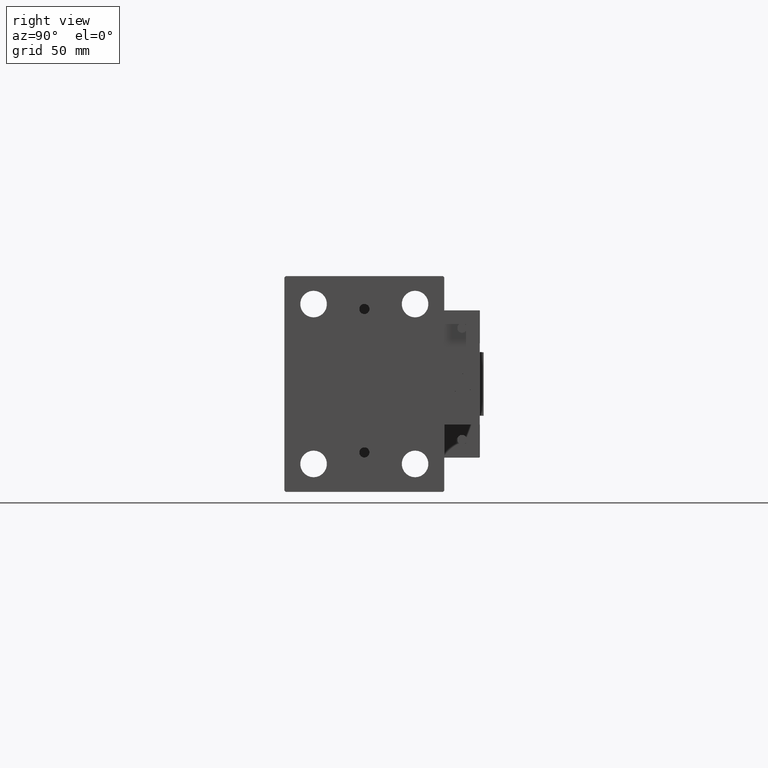
[diagram: clean part render]
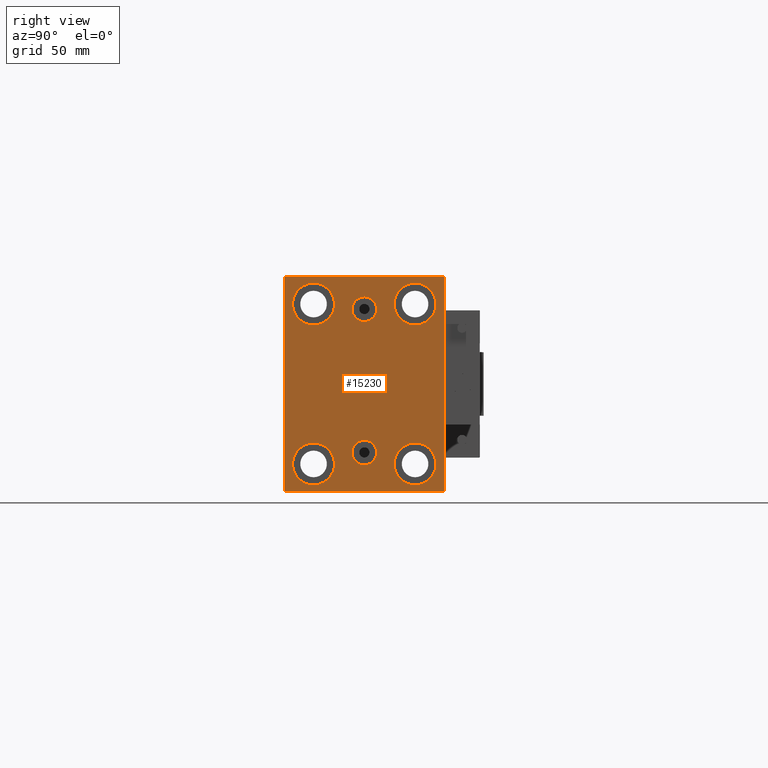
[diagram: same view with one face highlighted and labeled with its STEP entity id]
A machine part, right view. The second image highlights one B-rep face of the part: STEP entity #15230.
In plain terms, the highlighted planar face has unit normal (1, 0, 0).
Its self-contained STEP definition (entity closure, byte-faithful):
#266 = DIRECTION ( 'NONE',  ( 0.000000000000000000, 1.000000000000000000, 0.000000000000000000 ) ) ;
#341 = CARTESIAN_POINT ( 'NONE',  ( 163.0000000000000000, -31.50000000000000000, 42.49999999999999289 ) ) ;
#977 = EDGE_CURVE ( 'NONE', #10911, #2360, #22290, .T. ) ;
#983 = DIRECTION ( 'NONE',  ( 0.000000000000000000, 0.000000000000000000, 1.000000000000000000 ) ) ;
#1157 = CARTESIAN_POINT ( 'NONE',  ( 163.0000000000000000, -19.99999999999999645, 39.74999999999999289 ) ) ;
#2236 = ORIENTED_EDGE ( 'NONE', *, *, #4196, .T. ) ;
#2360 = VERTEX_POINT ( 'NONE', #43129 ) ;
#2400 = FACE_BOUND ( 'NONE', #3602, .T. ) ;
#2449 = DIRECTION ( 'NONE',  ( 0.000000000000000000, 0.000000000000000000, 1.000000000000000000 ) ) ;
#2628 = VERTEX_POINT ( 'NONE', #30527 ) ;
#2666 = CIRCLE ( 'NONE', #12656, 4.859999999999999432 ) ;
#2911 = FACE_BOUND ( 'NONE', #6239, .T. ) ;
#3354 = CARTESIAN_POINT ( 'NONE',  ( 163.0000000000000000, 20.00000000000000355, 31.50000000000000000 ) ) ;
#3540 = DIRECTION ( 'NONE',  ( -1.000000000000000000, -0.000000000000000000, -0.000000000000000000 ) ) ;
#3602 = EDGE_LOOP ( 'NONE', ( #18755, #25407 ) ) ;
#3807 = DIRECTION ( 'NONE',  ( 0.000000000000000000, -1.000000000000000000, -2.202823461557850341E-16 ) ) ;
#4196 = EDGE_CURVE ( 'NONE', #10333, #10911, #44656, .T. ) ;
#4869 = VERTEX_POINT ( 'NONE', #6586 ) ;
#4950 = ORIENTED_EDGE ( 'NONE', *, *, #50555, .F. ) ;
#5974 = AXIS2_PLACEMENT_3D ( 'NONE', #3354, #43883, #15635 ) ;
#6070 = CARTESIAN_POINT ( 'NONE',  ( 163.0000000000000000, 31.50000000000000000, 42.00000000000000711 ) ) ;
#6239 = EDGE_LOOP ( 'NONE', ( #19150, #11416 ) ) ;
#6566 = DIRECTION ( 'NONE',  ( 1.000000000000000000, 0.000000000000000000, 0.000000000000000000 ) ) ;
#6578 = PLANE ( 'NONE',  #9129 ) ;
#6586 = CARTESIAN_POINT ( 'NONE',  ( 163.0000000000000000, -31.00000000000000000, 42.49999999999999289 ) ) ;
#7011 = EDGE_LOOP ( 'NONE', ( #4950, #8597 ) ) ;
#7772 = VERTEX_POINT ( 'NONE', #47979 ) ;
#7831 = VERTEX_POINT ( 'NONE', #1157 ) ;
#7977 = CARTESIAN_POINT ( 'NONE',  ( 163.0000000000000000, 3.306546357697852550E-15, -26.99999999999998934 ) ) ;
#8114 = LINE ( 'NONE', #11507, #48381 ) ;
#8485 = DIRECTION ( 'NONE',  ( 0.000000000000000000, 0.000000000000000000, 1.000000000000000000 ) ) ;
#8597 = ORIENTED_EDGE ( 'NONE', *, *, #15758, .F. ) ;
#8694 = LINE ( 'NONE', #341, #15626 ) ;
#8766 = CARTESIAN_POINT ( 'NONE',  ( 163.0000000000000000, 31.50000000000000000, 42.50000000000000711 ) ) ;
#9114 = EDGE_LOOP ( 'NONE', ( #35561, #36079 ) ) ;
#9129 = AXIS2_PLACEMENT_3D ( 'NONE', #42394, #14161, #38480 ) ;
#9700 = VERTEX_POINT ( 'NONE', #19540 ) ;
#10152 = ORIENTED_EDGE ( 'NONE', *, *, #10568, .T. ) ;
#10333 = VERTEX_POINT ( 'NONE', #17222 ) ;
#10393 = EDGE_CURVE ( 'NONE', #23258, #9700, #26462, .T. ) ;
#10568 = EDGE_CURVE ( 'NONE', #23121, #36787, #36508, .T. ) ;
#10700 = DIRECTION ( 'NONE',  ( -1.000000000000000000, -0.000000000000000000, -0.000000000000000000 ) ) ;
#10744 = EDGE_CURVE ( 'NONE', #34931, #20957, #8694, .T. ) ;
#10911 = VERTEX_POINT ( 'NONE', #6070 ) ;
#10994 = DIRECTION ( 'NONE',  ( 1.000000000000000000, 0.000000000000000000, 0.000000000000000000 ) ) ;
#11416 = ORIENTED_EDGE ( 'NONE', *, *, #28342, .T. ) ;
#11507 = CARTESIAN_POINT ( 'NONE',  ( 163.0000000000000000, -36.75000000000000711, -36.75000000000000711 ) ) ;
#11564 = CARTESIAN_POINT ( 'NONE',  ( 163.0000000000000000, -19.99999999999999645, 31.50000000000000000 ) ) ;
#11667 = EDGE_CURVE ( 'NONE', #36787, #23121, #18206, .T. ) ;
#12656 = AXIS2_PLACEMENT_3D ( 'NONE', #34561, #10994, #31135 ) ;
#12737 = CARTESIAN_POINT ( 'NONE',  ( 163.0000000000000000, 31.50000000000001421, -42.50000000000000711 ) ) ;
#13048 = DIRECTION ( 'NONE',  ( -1.000000000000000000, -0.000000000000000000, -0.000000000000000000 ) ) ;
#13095 = ORIENTED_EDGE ( 'NONE', *, *, #49697, .T. ) ;
#13096 = ORIENTED_EDGE ( 'NONE', *, *, #20965, .T. ) ;
#13316 = DIRECTION ( 'NONE',  ( 0.000000000000000000, 0.000000000000000000, 1.000000000000000000 ) ) ;
#14161 = DIRECTION ( 'NONE',  ( 1.000000000000000000, 0.000000000000000000, 0.000000000000000000 ) ) ;
#14217 = AXIS2_PLACEMENT_3D ( 'NONE', #32952, #16468, #13316 ) ;
#14447 = VERTEX_POINT ( 'NONE', #34556 ) ;
#14630 = DIRECTION ( 'NONE',  ( 0.000000000000000000, 0.000000000000000000, 1.000000000000000000 ) ) ;
#14728 = CARTESIAN_POINT ( 'NONE',  ( 163.0000000000000000, 19.99999999999999645, -23.24999999999999289 ) ) ;
#14880 = EDGE_CURVE ( 'NONE', #2360, #4869, #24189, .T. ) ;
#15230 = ADVANCED_FACE ( 'NONE', ( #42652, #38228, #46839, #2400, #42148, #2911, #38738 ), #6578, .T. ) ;
#15302 = EDGE_CURVE ( 'NONE', #20957, #42758, #8114, .T. ) ;
#15626 = VECTOR ( 'NONE', #32745, 1000.000000000000000 ) ;
#15635 = DIRECTION ( 'NONE',  ( 0.000000000000000000, 0.000000000000000000, 1.000000000000000000 ) ) ;
#15758 = EDGE_CURVE ( 'NONE', #2628, #7772, #46734, .T. ) ;
#15899 = CIRCLE ( 'NONE', #35099, 4.859999999999995879 ) ;
#16077 = CARTESIAN_POINT ( 'NONE',  ( 163.0000000000000000, 31.00000000000001421, -42.50000000000000711 ) ) ;
#16265 = EDGE_CURVE ( 'NONE', #32442, #10333, #35513, .T. ) ;
#16440 = ORIENTED_EDGE ( 'NONE', *, *, #15302, .T. ) ;
#16468 = DIRECTION ( 'NONE',  ( 1.000000000000000000, 0.000000000000000000, -0.000000000000000000 ) ) ;
#16775 = AXIS2_PLACEMENT_3D ( 'NONE', #28100, #3540, #44063 ) ;
#17016 = EDGE_CURVE ( 'NONE', #14447, #22907, #22579, .T. ) ;
#17222 = CARTESIAN_POINT ( 'NONE',  ( 163.0000000000000000, 31.50000000000001421, -42.00000000000000711 ) ) ;
#17346 = VERTEX_POINT ( 'NONE', #26066 ) ;
#17430 = CARTESIAN_POINT ( 'NONE',  ( 163.0000000000000000, 19.99999999999999645, -31.49999999999999289 ) ) ;
#17882 = ORIENTED_EDGE ( 'NONE', *, *, #16265, .T. ) ;
#18206 = CIRCLE ( 'NONE', #19838, 8.250000000000000000 ) ;
#18755 = ORIENTED_EDGE ( 'NONE', *, *, #23332, .T. ) ;
#19150 = ORIENTED_EDGE ( 'NONE', *, *, #10393, .T. ) ;
#19498 = AXIS2_PLACEMENT_3D ( 'NONE', #43375, #10700, #14630 ) ;
#19540 = CARTESIAN_POINT ( 'NONE',  ( 163.0000000000000000, -20.00000000000000355, -23.24999999999999289 ) ) ;
#19546 = ORIENTED_EDGE ( 'NONE', *, *, #977, .T. ) ;
#19737 = CARTESIAN_POINT ( 'NONE',  ( 163.0000000000000000, 3.901724702083465828E-15, -22.13999999999999346 ) ) ;
#19815 = CARTESIAN_POINT ( 'NONE',  ( 163.0000000000000000, -31.50000000000000000, -42.00000000000000711 ) ) ;
#19838 = AXIS2_PLACEMENT_3D ( 'NONE', #17430, #20835, #983 ) ;
#20115 = CARTESIAN_POINT ( 'NONE',  ( 163.0000000000000000, -31.50000000000000000, -42.50000000000000711 ) ) ;
#20395 = DIRECTION ( 'NONE',  ( -0.000000000000000000, 0.7071067811865474617, -0.7071067811865474617 ) ) ;
#20835 = DIRECTION ( 'NONE',  ( -1.000000000000000000, -0.000000000000000000, -0.000000000000000000 ) ) ;
#20957 = VERTEX_POINT ( 'NONE', #19815 ) ;
#20965 = EDGE_CURVE ( 'NONE', #38754, #38504, #38557, .T. ) ;
#21513 = AXIS2_PLACEMENT_3D ( 'NONE', #37770, #25484, #2449 ) ;
#22290 = LINE ( 'NONE', #34584, #48594 ) ;
#22579 = CIRCLE ( 'NONE', #14217, 4.859999999999995879 ) ;
#22907 = VERTEX_POINT ( 'NONE', #19737 ) ;
#22983 = EDGE_CURVE ( 'NONE', #7831, #17346, #39329, .T. ) ;
#23121 = VERTEX_POINT ( 'NONE', #14728 ) ;
#23258 = VERTEX_POINT ( 'NONE', #27526 ) ;
#23332 = EDGE_CURVE ( 'NONE', #17346, #7831, #29329, .T. ) ;
#23818 = EDGE_CURVE ( 'NONE', #38504, #38754, #47743, .T. ) ;
#24189 = LINE ( 'NONE', #8766, #51724 ) ;
#25407 = ORIENTED_EDGE ( 'NONE', *, *, #22983, .T. ) ;
#25484 = DIRECTION ( 'NONE',  ( -1.000000000000000000, -0.000000000000000000, -0.000000000000000000 ) ) ;
#26011 = AXIS2_PLACEMENT_3D ( 'NONE', #35195, #50391, #30747 ) ;
#26066 = CARTESIAN_POINT ( 'NONE',  ( 163.0000000000000000, -19.99999999999999645, 23.25000000000000355 ) ) ;
#26199 = CIRCLE ( 'NONE', #19498, 8.250000000000000000 ) ;
#26462 = CIRCLE ( 'NONE', #44841, 8.250000000000000000 ) ;
#27526 = CARTESIAN_POINT ( 'NONE',  ( 163.0000000000000000, -20.00000000000000355, -39.74999999999999289 ) ) ;
#27913 = DIRECTION ( 'NONE',  ( -0.000000000000000000, 0.7071067811865474617, 0.7071067811865474617 ) ) ;
#28100 = CARTESIAN_POINT ( 'NONE',  ( 163.0000000000000000, -19.99999999999999645, 31.50000000000000000 ) ) ;
#28342 = EDGE_CURVE ( 'NONE', #9700, #23258, #26199, .T. ) ;
#29214 = VECTOR ( 'NONE', #27913, 1000.000000000000114 ) ;
#29329 = CIRCLE ( 'NONE', #37705, 8.249999999999992895 ) ;
#30527 = CARTESIAN_POINT ( 'NONE',  ( 163.0000000000000000, -2.976515330312223011E-15, 34.36000000000000654 ) ) ;
#30747 = DIRECTION ( 'NONE',  ( 0.000000000000000000, 0.000000000000000000, 1.000000000000000000 ) ) ;
#31135 = DIRECTION ( 'NONE',  ( 0.000000000000000000, 0.000000000000000000, -1.000000000000000000 ) ) ;
#32291 = DIRECTION ( 'NONE',  ( 0.000000000000000000, 0.000000000000000000, 1.000000000000000000 ) ) ;
#32327 = CARTESIAN_POINT ( 'NONE',  ( 163.0000000000000000, -31.00000000000000000, -42.50000000000000711 ) ) ;
#32442 = VERTEX_POINT ( 'NONE', #16077 ) ;
#32745 = DIRECTION ( 'NONE',  ( 0.000000000000000000, 0.000000000000000000, -1.000000000000000000 ) ) ;
#32952 = CARTESIAN_POINT ( 'NONE',  ( 163.0000000000000000, 3.306546357697852550E-15, -26.99999999999998934 ) ) ;
#33104 = CARTESIAN_POINT ( 'NONE',  ( 163.0000000000000000, 20.00000000000000355, 39.74999999999999289 ) ) ;
#33364 = ORIENTED_EDGE ( 'NONE', *, *, #11667, .T. ) ;
#33484 = CARTESIAN_POINT ( 'NONE',  ( 163.0000000000000000, -31.50000000000000000, 41.99999999999999289 ) ) ;
#34556 = CARTESIAN_POINT ( 'NONE',  ( 163.0000000000000000, 3.306546357697852550E-15, -31.85999999999998522 ) ) ;
#34561 = CARTESIAN_POINT ( 'NONE',  ( 163.0000000000000000, -3.571693674697836683E-15, 29.50000000000001066 ) ) ;
#34584 = CARTESIAN_POINT ( 'NONE',  ( 163.0000000000000000, 36.75000000000000711, 36.75000000000000711 ) ) ;
#34806 = DIRECTION ( 'NONE',  ( 0.000000000000000000, 0.000000000000000000, -1.000000000000000000 ) ) ;
#34871 = ORIENTED_EDGE ( 'NONE', *, *, #14880, .T. ) ;
#34931 = VERTEX_POINT ( 'NONE', #33484 ) ;
#35099 = AXIS2_PLACEMENT_3D ( 'NONE', #7977, #44847, #32291 ) ;
#35195 = CARTESIAN_POINT ( 'NONE',  ( 163.0000000000000000, 20.00000000000000355, 31.50000000000000000 ) ) ;
#35388 = DIRECTION ( 'NONE',  ( 0.000000000000000000, 0.000000000000000000, 1.000000000000000000 ) ) ;
#35513 = LINE ( 'NONE', #39170, #29214 ) ;
#35561 = ORIENTED_EDGE ( 'NONE', *, *, #17016, .F. ) ;
#35638 = ORIENTED_EDGE ( 'NONE', *, *, #47266, .T. ) ;
#35768 = DIRECTION ( 'NONE',  ( 0.000000000000000000, -1.632680918566406300E-16, 1.000000000000000000 ) ) ;
#36079 = ORIENTED_EDGE ( 'NONE', *, *, #47317, .F. ) ;
#36214 = CARTESIAN_POINT ( 'NONE',  ( 163.0000000000000000, -20.00000000000000355, -31.49999999999999289 ) ) ;
#36508 = CIRCLE ( 'NONE', #21513, 8.250000000000000000 ) ;
#36787 = VERTEX_POINT ( 'NONE', #47165 ) ;
#37377 = EDGE_LOOP ( 'NONE', ( #33364, #10152 ) ) ;
#37705 = AXIS2_PLACEMENT_3D ( 'NONE', #11564, #13048, #35388 ) ;
#37770 = CARTESIAN_POINT ( 'NONE',  ( 163.0000000000000000, 19.99999999999999645, -31.49999999999999289 ) ) ;
#38228 = FACE_BOUND ( 'NONE', #9114, .T. ) ;
#38480 = DIRECTION ( 'NONE',  ( 0.000000000000000000, 0.000000000000000000, -1.000000000000000000 ) ) ;
#38504 = VERTEX_POINT ( 'NONE', #44092 ) ;
#38557 = CIRCLE ( 'NONE', #5974, 8.249999999999992895 ) ;
#38726 = CARTESIAN_POINT ( 'NONE',  ( 163.0000000000000000, -3.571693674697836683E-15, 29.50000000000001066 ) ) ;
#38738 = FACE_OUTER_BOUND ( 'NONE', #51361, .T. ) ;
#38754 = VERTEX_POINT ( 'NONE', #33104 ) ;
#39170 = CARTESIAN_POINT ( 'NONE',  ( 163.0000000000000000, 36.75000000000001421, -36.75000000000001421 ) ) ;
#39329 = CIRCLE ( 'NONE', #16775, 8.249999999999992895 ) ;
#39369 = DIRECTION ( 'NONE',  ( 0.000000000000000000, -0.7071067811865474617, -0.7071067811865474617 ) ) ;
#40371 = VECTOR ( 'NONE', #35768, 1000.000000000000000 ) ;
#42148 = FACE_BOUND ( 'NONE', #44948, .T. ) ;
#42394 = CARTESIAN_POINT ( 'NONE',  ( 163.0000000000000000, 0.000000000000000000, 0.000000000000000000 ) ) ;
#42652 = FACE_BOUND ( 'NONE', #7011, .T. ) ;
#42720 = VECTOR ( 'NONE', #266, 1000.000000000000000 ) ;
#42758 = VERTEX_POINT ( 'NONE', #32327 ) ;
#43129 = CARTESIAN_POINT ( 'NONE',  ( 163.0000000000000000, 31.00000000000000000, 42.50000000000000711 ) ) ;
#43375 = CARTESIAN_POINT ( 'NONE',  ( 163.0000000000000000, -20.00000000000000355, -31.49999999999999289 ) ) ;
#43405 = LINE ( 'NONE', #20115, #42720 ) ;
#43437 = DIRECTION ( 'NONE',  ( -0.000000000000000000, -0.7071067811865474617, 0.7071067811865474617 ) ) ;
#43547 = CARTESIAN_POINT ( 'NONE',  ( 163.0000000000000000, -36.75000000000000000, 36.75000000000000000 ) ) ;
#43883 = DIRECTION ( 'NONE',  ( -1.000000000000000000, -0.000000000000000000, -0.000000000000000000 ) ) ;
#44063 = DIRECTION ( 'NONE',  ( 0.000000000000000000, 0.000000000000000000, 1.000000000000000000 ) ) ;
#44092 = CARTESIAN_POINT ( 'NONE',  ( 163.0000000000000000, 20.00000000000000355, 23.25000000000000355 ) ) ;
#44656 = LINE ( 'NONE', #12737, #40371 ) ;
#44841 = AXIS2_PLACEMENT_3D ( 'NONE', #36214, #45092, #8485 ) ;
#44847 = DIRECTION ( 'NONE',  ( 1.000000000000000000, 0.000000000000000000, -0.000000000000000000 ) ) ;
#44948 = EDGE_LOOP ( 'NONE', ( #49675, #13096 ) ) ;
#45092 = DIRECTION ( 'NONE',  ( -1.000000000000000000, -0.000000000000000000, -0.000000000000000000 ) ) ;
#46734 = CIRCLE ( 'NONE', #48413, 4.859999999999999432 ) ;
#46839 = FACE_BOUND ( 'NONE', #37377, .T. ) ;
#47009 = ORIENTED_EDGE ( 'NONE', *, *, #10744, .T. ) ;
#47165 = CARTESIAN_POINT ( 'NONE',  ( 163.0000000000000000, 19.99999999999999645, -39.74999999999999289 ) ) ;
#47266 = EDGE_CURVE ( 'NONE', #4869, #34931, #50896, .T. ) ;
#47317 = EDGE_CURVE ( 'NONE', #22907, #14447, #15899, .T. ) ;
#47743 = CIRCLE ( 'NONE', #26011, 8.249999999999992895 ) ;
#47979 = CARTESIAN_POINT ( 'NONE',  ( 163.0000000000000000, -3.571693674697836683E-15, 24.64000000000001123 ) ) ;
#48381 = VECTOR ( 'NONE', #20395, 1000.000000000000114 ) ;
#48413 = AXIS2_PLACEMENT_3D ( 'NONE', #38726, #6566, #34806 ) ;
#48594 = VECTOR ( 'NONE', #43437, 1000.000000000000114 ) ;
#49424 = VECTOR ( 'NONE', #39369, 1000.000000000000114 ) ;
#49675 = ORIENTED_EDGE ( 'NONE', *, *, #23818, .T. ) ;
#49697 = EDGE_CURVE ( 'NONE', #42758, #32442, #43405, .T. ) ;
#50391 = DIRECTION ( 'NONE',  ( -1.000000000000000000, -0.000000000000000000, -0.000000000000000000 ) ) ;
#50555 = EDGE_CURVE ( 'NONE', #7772, #2628, #2666, .T. ) ;
#50896 = LINE ( 'NONE', #43547, #49424 ) ;
#51361 = EDGE_LOOP ( 'NONE', ( #34871, #35638, #47009, #16440, #13095, #17882, #2236, #19546 ) ) ;
#51724 = VECTOR ( 'NONE', #3807, 1000.000000000000000 ) ;